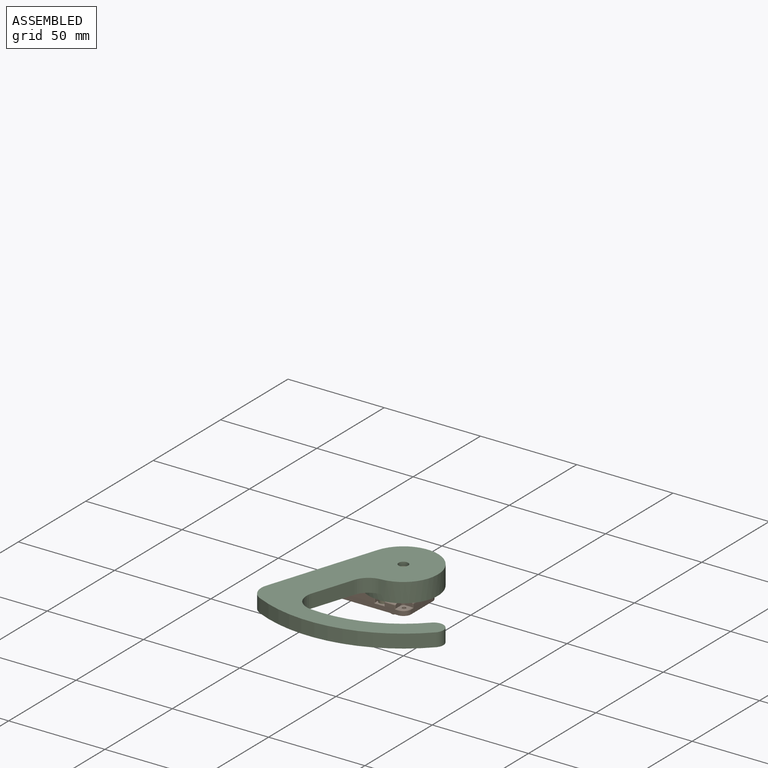
[diagram: assembled view]
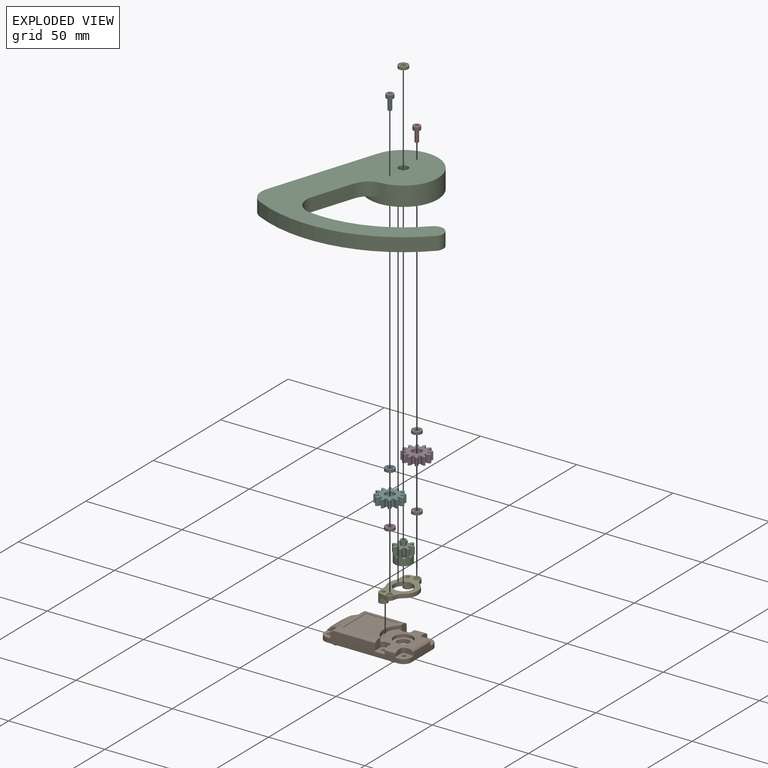
[diagram: exploded view]
GUIDED TOUR — MATED ASSEMBLY (Onshape document 81946194789873d5181b85b1, AutoMate assembly 81946194789873d5181b85b1_256f28a92b45ead868660c09_f54baf32d58786c9b63e995d_default)

This assembly has 13 components, labeled P0..P12 below (a component is one placed occurrence of a part; the same part can appear more than once), held together by 13 mates. A mate is a constraint between two components; its type names the relative motion it leaves free:
  CYLINDRICAL — leaves both rotation about and translation along the listed axis free,
  FASTENED — locks the two components together rigidly (no relative motion),
  REVOLUTE — leaves rotation about the listed axis free (a hinge).
Axis/direction vectors are unit vectors and 'through' points are millimeter coordinates, both in the assembly's world frame.

MATES
  1. REVOLUTE "Revolute 1": P9 <-> P4, axis (0.000, 0.000, -1.000) through (0.00, 10.00, 4.00) mm
  2. REVOLUTE "Revolute 2": P4 <-> P3, axis (0.000, 0.000, 1.000) through (0.00, -10.00, 4.00) mm
  3. REVOLUTE "Revolute 4": P12 <-> P10, axis (0.000, 0.000, -1.000) through (0.00, 0.00, 10.50) mm
  4. FASTENED "Fastened 2": P4 <-> P1, direction (0.000, 0.000, -1.000) through (-4.00, -9.00, -1.30) mm
  5. REVOLUTE "Revolute 3": P1 <-> P10, axis (0.000, 0.000, 1.000) through (0.00, 0.00, 0.00) mm
  6. FASTENED "Fastened 3": P11 <-> P6, direction (0.000, 0.000, 1.000) through (0.00, 10.00, 6.50) mm
  7. FASTENED "Fastened 4": P11 <-> P9, direction (0.000, 0.000, -1.000) through (0.00, 10.00, 5.50) mm
  8. FASTENED "Fastened 8": P0 <-> P8, direction (0.000, 0.000, 1.000) through (0.00, -10.00, 8.00) mm
  9. FASTENED "Fastened 5": P5 <-> P3, direction (0.000, 0.000, -1.000) through (0.00, -10.00, 5.50) mm
  10. CYLINDRICAL "Cylindrical 1": P1 <-> P4, axis (0.000, 0.000, 1.000) through (0.00, 0.00, 0.75) mm
  11. FASTENED "Fastened 6": P5 <-> P0, direction (0.000, 0.000, 1.000) through (0.00, -10.00, 6.50) mm
  12. FASTENED "Fastened 7": P6 <-> P7, direction (0.000, 0.000, 1.000) through (0.00, 10.00, 8.00) mm
  13. FASTENED "Fastened 9": P2 <-> P12, direction (0.000, 0.000, 1.000) through (0.00, 0.00, 10.50) mm

ASSEMBLY ORDER
  1. P4 — the base component [order heuristic]
  2. P1 — core [order heuristic]
  3. P10 — core [order heuristic]
  4. P9 — core [order heuristic]
  5. P3 — core [order heuristic]
  6. P5 — core [order heuristic]
  7. P11 — core [order heuristic]
  8. P0 — core [order heuristic]
  9. P6 — core [order heuristic]
  10. P8 — core [order heuristic]
  11. P7 — core [order heuristic]
  12. P2 — core [order heuristic]
  13. P12 [order verified]
Order-tag legend:
  [order verified] — this step's position reverses a verified removal order: the component was checked to insert without passing through the ones already placed.
  [order heuristic] — the first 12 components form the assembly's core: parts whose collision-free extraction could not be verified, listed in mate-graph order.

Of the 13 components, 2 carry the full construction recipe — the FeatureScript program that regenerates the part's solid from scratch; the rest are supplied as boundary geometry only.
Because this assembly has more than 12 components, the tour below covers the 12 most significant ones individually (every recipe-attached component first, then the largest by part volume), in assembly order; the remaining 1 are summarized together in a grouped section at the end.
Each toured component is shown spotlighted twice — in the assembled view, then in the exploded view, where a leader line traces a displaced component back to its assembled socket (saturated green if recipe-attached, orange if geometry-only; every other component desaturated gray) — followed by its recipe or geometry summary and the mates that hold it.
NOTE — document 2 of 2 of this assembly tour. The two overview renders and the header above are repeated from document 1; the component sections below continue where the previous document stopped.
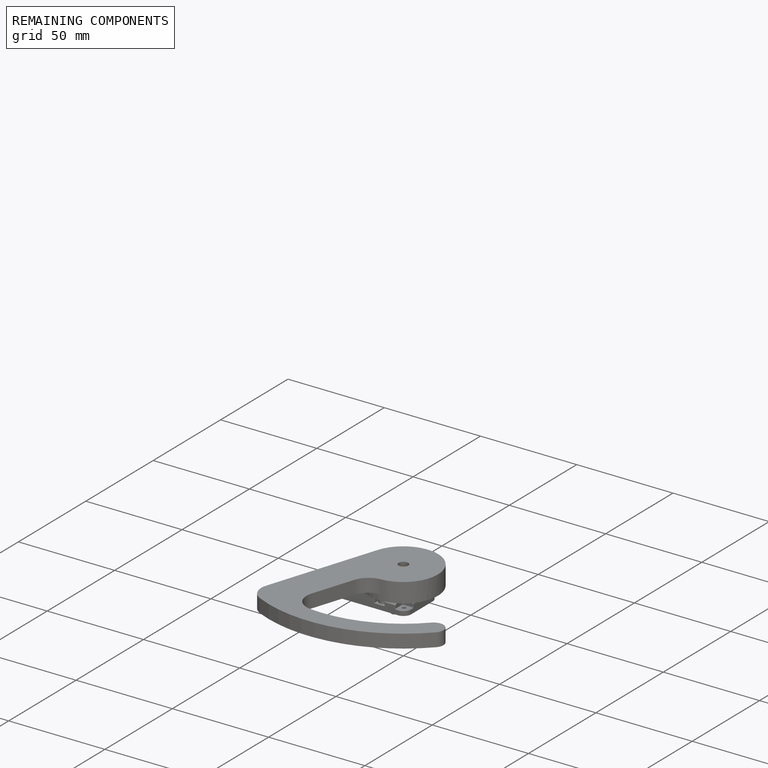
[diagram: remaining components — assembled]
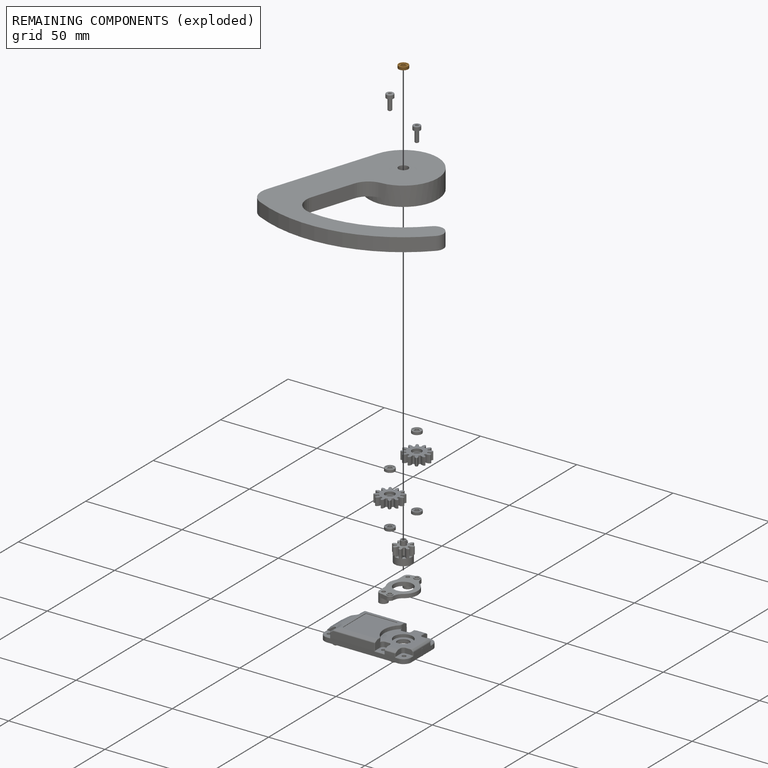
[diagram: remaining components — exploded]
REMAINING COMPONENTS (grouped) — the 1 components below fall outside the per-component tour by the significance rule stated above; both spotlight views highlight the whole group.
  P12: bounding box 5.4 x 5.4 x 1.5 mm, volume 22 mm^3. Held by: REVOLUTE mate "Revolute 4" to P10; FASTENED mate "Fastened 9" to P2.
PROVENANCE & LICENSES
Assembly (occurrences, transforms, mates, per-part STEP geometry): AutoMate dataset, Zenodo record 7776208, CC0.
Construction recipes: CADFS (HuggingFace VladPyatov/CADFS, CC-BY-4.0, layered over the ABC dataset), FeatureScript reconstruction programs keyed by ABC model id.
Join: ABC meta listings map ABC model id -> Onshape documentId; within a shared document, parts are matched by geometric signature (bounding-box dims + volume at 0.1% relative tolerance, exact B-rep face/solid counts).
Verification: 2 of this assembly's 13 components carry a recipe attachment, and every attachment is mesh-verified: the CADFS STEP and the AutoMate member STEP were compared as meshes in their shared local frame (symmetric sampled-point-to-mesh distance); worst across the 2 attachments: below the mesh-comparison resolution (tessellation chordal tolerance ~0.0296 mm) on a 20 mm part.
Renders: orthographic iso camera (az 35 / el 25); the floor grid conveys scale (grid pitch printed in each image; no ruler). In the exploded view each component is displaced by its stored offset vector: the offsets alone carry the explosion direction (mate normal/axis signs are not orientation cues and do not encode it), and separation distances are assigned per mate-chain, not proportionally to assembly-order depth.
